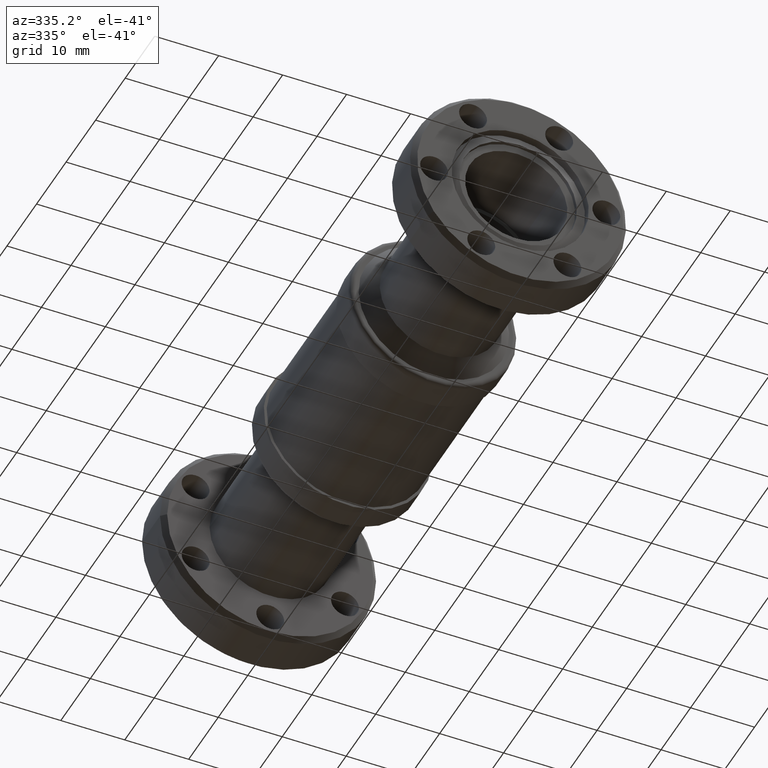
[diagram: clean part render]
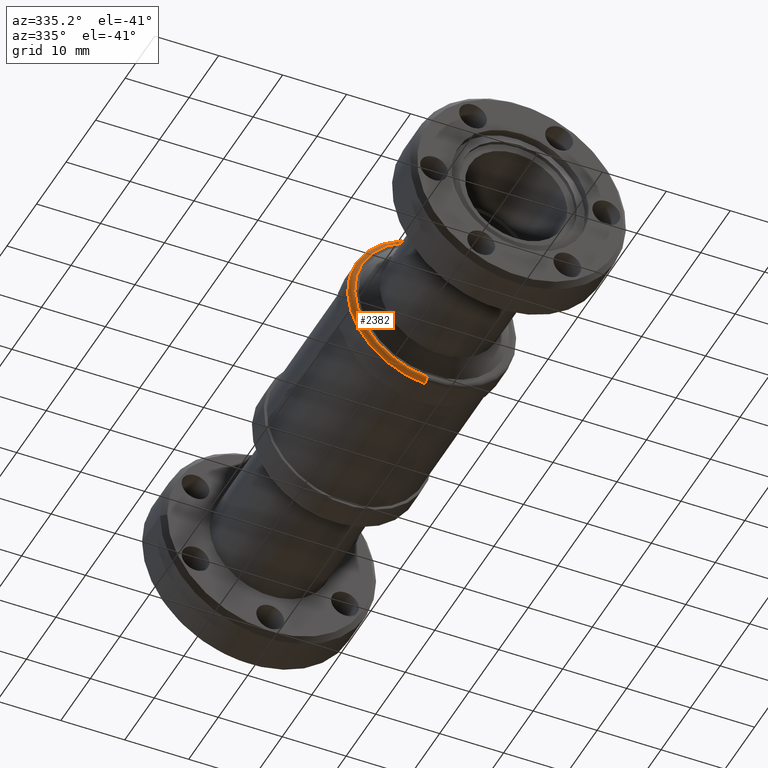
[diagram: same view with one face highlighted and labeled with its STEP entity id]
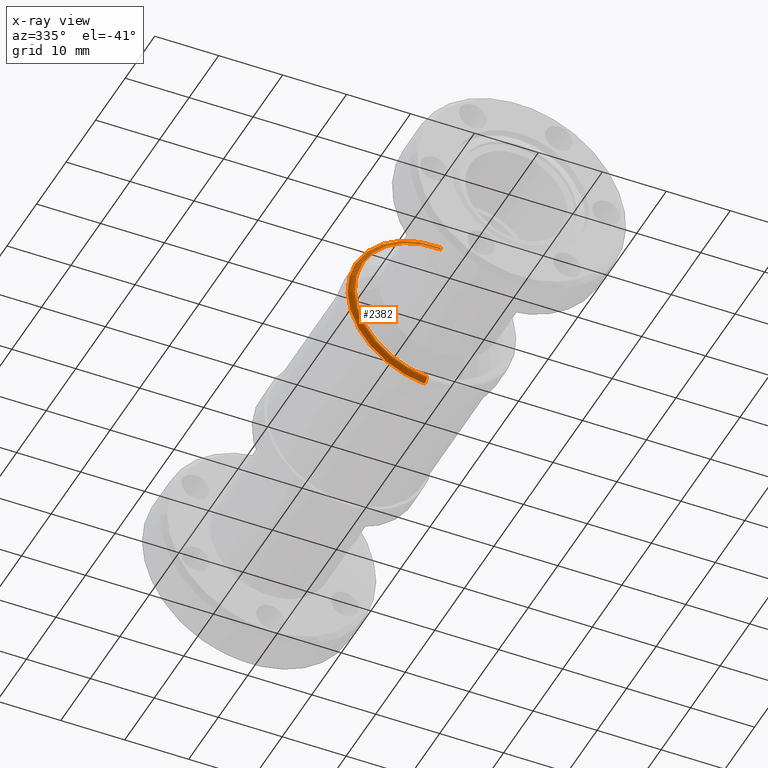
[diagram: x-ray of the same camera — body ghosted, the highlighted face saturated]
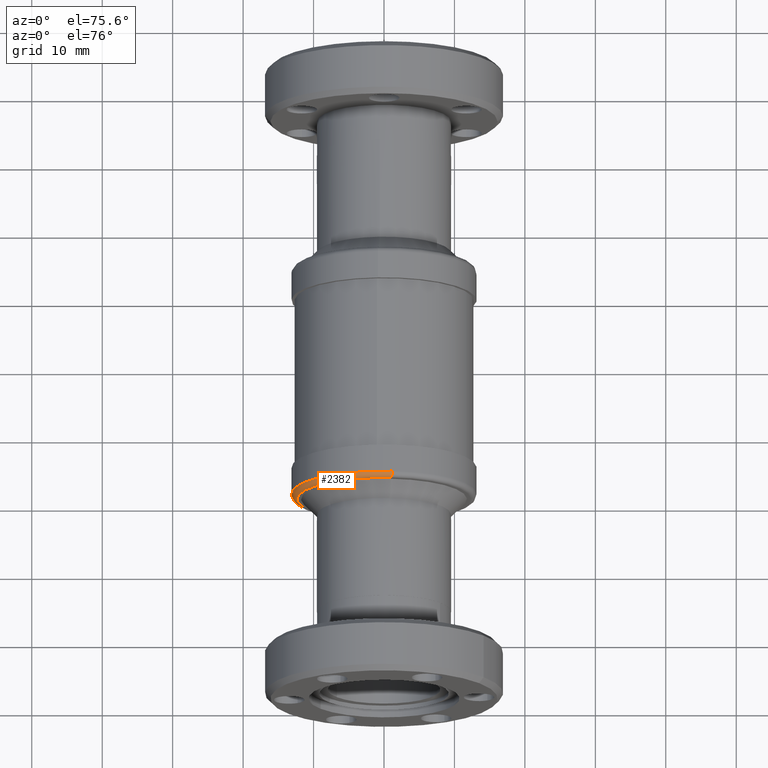
[diagram: same view with one face highlighted and labeled with its STEP entity id]
A machine part, auxiliary view. The second image highlights one B-rep face of the part: STEP entity #2382.
The next image is the same camera in x-ray: the body ghosted, the highlighted face saturated — about 5% of this face is hidden behind the body in this view.
A second angle (auxiliary view) of the same face is appended — the face is thin or edge-on in the first view.
In plain terms, the highlighted toroidal blend (fillet) surface has major radius 12.3825 mm and minor (blend) radius 0.762 mm.
Its self-contained STEP definition (entity closure, byte-faithful):
#72 = VERTEX_POINT ( 'NONE', #2508 ) ;
#241 = TOROIDAL_SURFACE ( 'NONE', #2557, 0.4874999999999999889, 0.03000000000000005440 ) ;
#295 = CARTESIAN_POINT ( 'NONE',  ( 1.102182119232617048E-16, -2.450000000000000178, 0.0000000000000000000 ) ) ;
#304 = DIRECTION ( 'NONE',  ( 0.9962756734319773155, 0.0000000000000000000, -0.08622518499638279210 ) ) ;
#336 = CARTESIAN_POINT ( 'NONE',  ( 1.102182119232617048E-16, -2.450000000000000178, 0.0000000000000000000 ) ) ;
#461 = AXIS2_PLACEMENT_3D ( 'NONE', #2617, #304, #764 ) ;
#476 = AXIS2_PLACEMENT_3D ( 'NONE', #295, #821, #527 ) ;
#525 = EDGE_CURVE ( 'NONE', #3298, #557, #1769, .T. ) ;
#527 = DIRECTION ( 'NONE',  ( 0.08622518499638291700, 0.0000000000000000000, 0.9962756734319772045 ) ) ;
#557 = VERTEX_POINT ( 'NONE', #849 ) ;
#727 = EDGE_CURVE ( 'NONE', #3298, #2237, #3266, .T. ) ;
#764 = DIRECTION ( 'NONE',  ( -0.08622518499638275047, 0.0000000000000000000, -0.9962756734319772045 ) ) ;
#821 = DIRECTION ( 'NONE',  ( 0.0000000000000000000, 1.000000000000000000, 0.0000000000000000000 ) ) ;
#849 = CARTESIAN_POINT ( 'NONE',  ( 0.04203477768573677525, -2.480000000000000426, 0.4856843907980888386 ) ) ;
#990 = AXIS2_PLACEMENT_3D ( 'NONE', #3291, #2218, #2945 ) ;
#1489 = EDGE_CURVE ( 'NONE', #2237, #72, #2185, .T. ) ;
#1605 = ORIENTED_EDGE ( 'NONE', *, *, #2942, .T. ) ;
#1609 = EDGE_LOOP ( 'NONE', ( #2750, #2015, #1605, #3284 ) ) ;
#1769 = CIRCLE ( 'NONE', #3283, 0.4874999999999999889 ) ;
#1834 = CIRCLE ( 'NONE', #990, 0.03000000000000004052 ) ;
#1886 = FACE_OUTER_BOUND ( 'NONE', #1609, .T. ) ;
#2015 = ORIENTED_EDGE ( 'NONE', *, *, #525, .T. ) ;
#2185 = CIRCLE ( 'NONE', #476, 0.5174999999999999600 ) ;
#2218 = DIRECTION ( 'NONE',  ( -0.9962756734319770935, 0.0000000000000000000, 0.08622518499638290312 ) ) ;
#2237 = VERTEX_POINT ( 'NONE', #2963 ) ;
#2382 = ADVANCED_FACE ( 'NONE', ( #1886 ), #241, .T. ) ;
#2448 = DIRECTION ( 'NONE',  ( 0.0000000000000000000, 1.000000000000000000, 0.0000000000000000000 ) ) ;
#2508 = CARTESIAN_POINT ( 'NONE',  ( 0.04462153323562826485, -2.450000000000000178, 0.5155726610010481492 ) ) ;
#2557 = AXIS2_PLACEMENT_3D ( 'NONE', #336, #3162, #2666 ) ;
#2617 = CARTESIAN_POINT ( 'NONE',  ( -0.04203477768573649076, -2.450000000000000178, -0.4856843907980888386 ) ) ;
#2646 = CARTESIAN_POINT ( 'NONE',  ( -0.04203477768573649076, -2.480000000000000426, -0.4856843907980888386 ) ) ;
#2666 = DIRECTION ( 'NONE',  ( 0.08622518499638291700, 0.0000000000000000000, 0.9962756734319772045 ) ) ;
#2750 = ORIENTED_EDGE ( 'NONE', *, *, #727, .F. ) ;
#2756 = CARTESIAN_POINT ( 'NONE',  ( 1.102182119232617048E-16, -2.480000000000000426, 0.0000000000000000000 ) ) ;
#2942 = EDGE_CURVE ( 'NONE', #557, #72, #1834, .T. ) ;
#2945 = DIRECTION ( 'NONE',  ( 0.08622518499638304190, 0.0000000000000000000, 0.9962756734319772045 ) ) ;
#2963 = CARTESIAN_POINT ( 'NONE',  ( -0.04462153323562798729, -2.450000000000000178, -0.5155726610010482602 ) ) ;
#3016 = DIRECTION ( 'NONE',  ( 0.08622518499638290312, 0.0000000000000000000, 0.9962756734319770935 ) ) ;
#3162 = DIRECTION ( 'NONE',  ( 0.0000000000000000000, 1.000000000000000000, 0.0000000000000000000 ) ) ;
#3266 = CIRCLE ( 'NONE', #461, 0.03000000000000004052 ) ;
#3283 = AXIS2_PLACEMENT_3D ( 'NONE', #2756, #2448, #3016 ) ;
#3284 = ORIENTED_EDGE ( 'NONE', *, *, #1489, .F. ) ;
#3291 = CARTESIAN_POINT ( 'NONE',  ( 0.04203477768573677525, -2.450000000000000178, 0.4856843907980888386 ) ) ;
#3298 = VERTEX_POINT ( 'NONE', #2646 ) ;